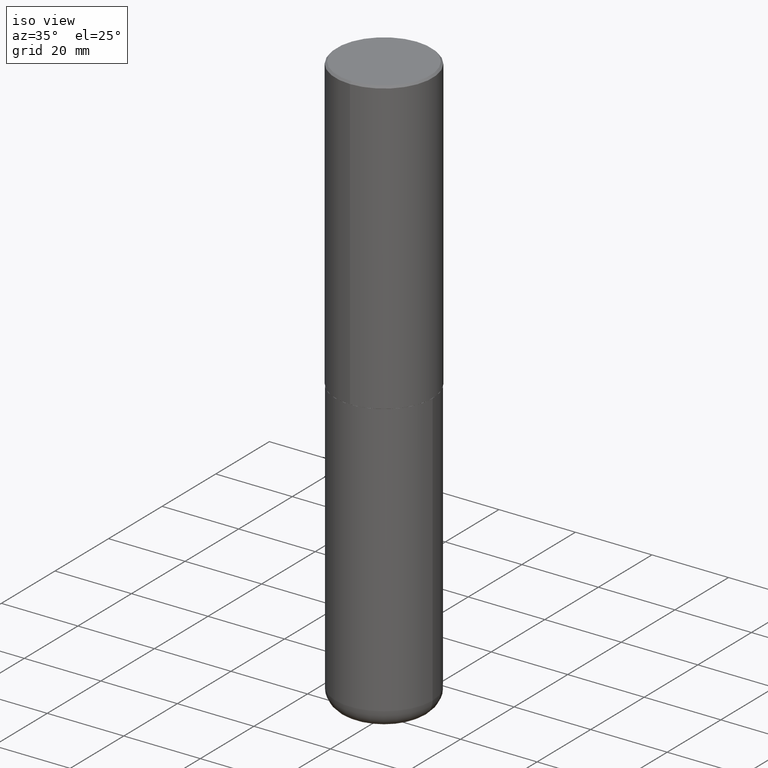
[diagram: clean part render]
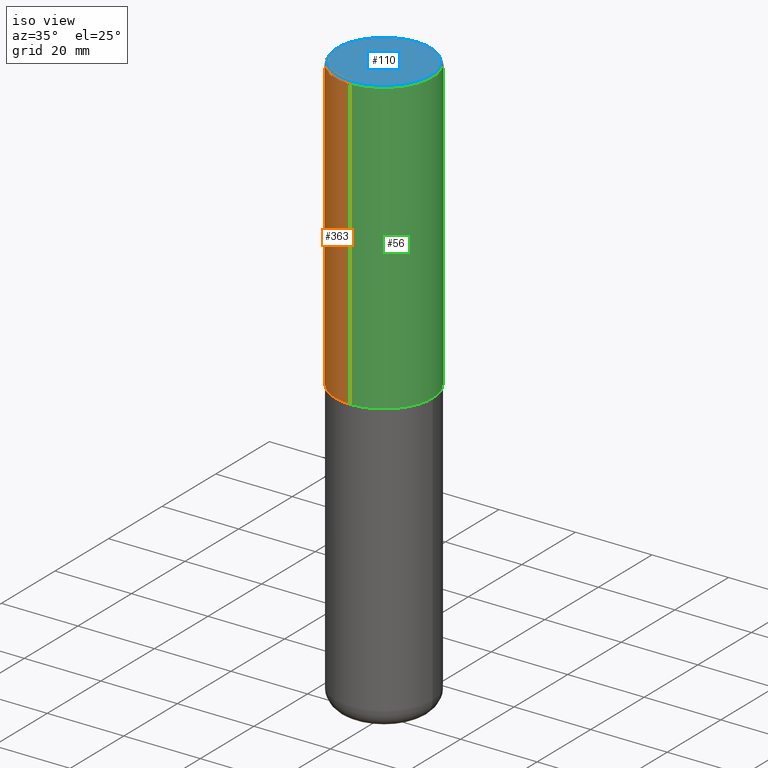
[diagram: same view with three faces highlighted in distinct colors, each labeled with its STEP entity id]
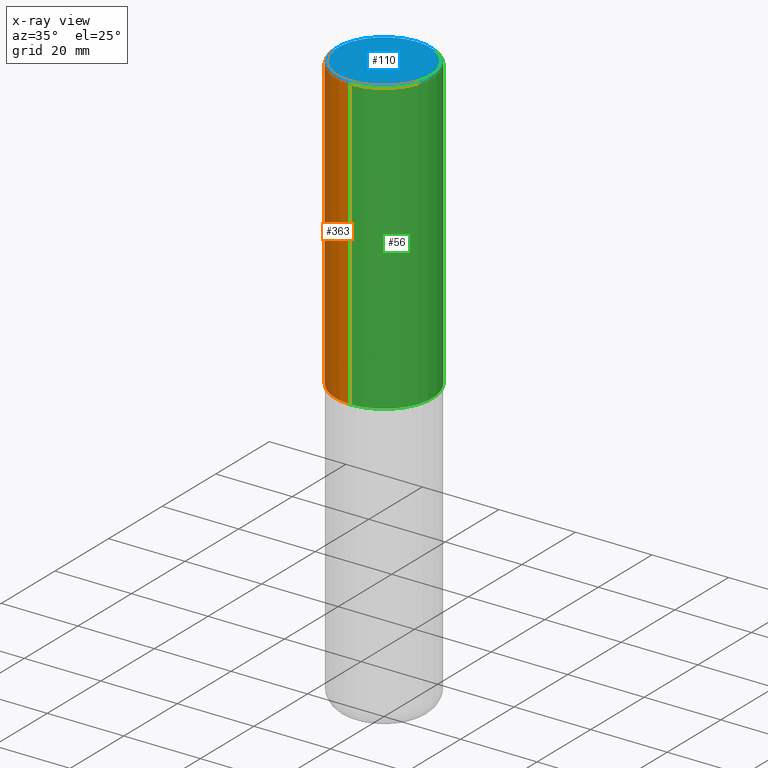
[diagram: x-ray of the same camera — body ghosted, the three highlighted faces saturated]
A machine part, iso view with three faces highlighted in distinct colors.
The next image is the same camera in x-ray (body ghosted, the three faces saturated) — at least one of them is partly hidden behind the body in this view.
Their STEP definitions:

[orange] entity #363 — the highlighted cylindrical surface (partial cylindrical patch) has radius 12.7 mm, axis along (-0, 0, 1).
#4 = CARTESIAN_POINT ( 'NONE',  ( 3.491481338843133355E-15, 0.4999999999999999445, -0.02000000000000185310 ) ) ;
#14 = AXIS2_PLACEMENT_3D ( 'NONE', #88, #143, #381 ) ;
#19 = VERTEX_POINT ( 'NONE', #4 ) ;
#59 = CARTESIAN_POINT ( 'NONE',  ( -3.491481338843133750E-15, -0.5000000000000001110, 1.746149358764313390E-15 ) ) ;
#62 = ORIENTED_EDGE ( 'NONE', *, *, #132, .T. ) ;
#65 = CARTESIAN_POINT ( 'NONE',  ( -3.430248998885764992E-15, -0.5000000000000001110, -0.01999999999999835937 ) ) ;
#66 = CARTESIAN_POINT ( 'NONE',  ( 4.889796067399450837E-31, -6.984597435057287381E-17, -0.02000000000000010797 ) ) ;
#69 = CIRCLE ( 'NONE', #266, 0.5000000000000000000 ) ;
#79 = EDGE_LOOP ( 'NONE', ( #281, #267, #62, #284 ) ) ;
#88 = CARTESIAN_POINT ( 'NONE',  ( 7.332249203065438921E-29, -1.047340385386834930E-14, -2.999000000000000554 ) ) ;
#109 = VERTEX_POINT ( 'NONE', #325 ) ;
#132 = EDGE_CURVE ( 'NONE', #197, #222, #321, .T. ) ;
#143 = DIRECTION ( 'NONE',  ( -2.444898033699712212E-29, 3.492298717528625990E-15, 1.000000000000000000 ) ) ;
#152 = CARTESIAN_POINT ( 'NONE',  ( 3.552713678800501718E-15, 0.5000000000000001110, -1.746149358764313390E-15 ) ) ;
#153 = CARTESIAN_POINT ( 'NONE',  ( -3.491481338843061569E-15, -0.5000000000000107692, -2.998999999999998778 ) ) ;
#171 = CARTESIAN_POINT ( 'NONE',  ( 0.000000000000000000, 0.000000000000000000, 0.000000000000000000 ) ) ;
#181 = DIRECTION ( 'NONE',  ( -6.982962677686265922E-15, -1.000000000000000000, 3.491643216902136408E-15 ) ) ;
#184 = VECTOR ( 'NONE', #383, 39.37007874015748143 ) ;
#197 = VERTEX_POINT ( 'NONE', #153 ) ;
#204 = VECTOR ( 'NONE', #248, 39.37007874015748143 ) ;
#205 = LINE ( 'NONE', #152, #184 ) ;
#206 = AXIS2_PLACEMENT_3D ( 'NONE', #171, #240, #341 ) ;
#222 = VERTEX_POINT ( 'NONE', #65 ) ;
#238 = FACE_OUTER_BOUND ( 'NONE', #79, .T. ) ;
#240 = DIRECTION ( 'NONE',  ( -2.444898033699712212E-29, 3.492298717528625990E-15, 1.000000000000000000 ) ) ;
#248 = DIRECTION ( 'NONE',  ( -2.444898033699711931E-29, 3.492298717528626385E-15, 1.000000000000000000 ) ) ;
#266 = AXIS2_PLACEMENT_3D ( 'NONE', #66, #359, #181 ) ;
#267 = ORIENTED_EDGE ( 'NONE', *, *, #298, .T. ) ;
#281 = ORIENTED_EDGE ( 'NONE', *, *, #371, .F. ) ;
#284 = ORIENTED_EDGE ( 'NONE', *, *, #293, .F. ) ;
#293 = EDGE_CURVE ( 'NONE', #19, #222, #69, .T. ) ;
#298 = EDGE_CURVE ( 'NONE', #109, #197, #366, .T. ) ;
#321 = LINE ( 'NONE', #59, #204 ) ;
#325 = CARTESIAN_POINT ( 'NONE',  ( 3.552713678800539584E-15, 0.4999999999999898970, -2.999000000000001886 ) ) ;
#341 = DIRECTION ( 'NONE',  ( -6.982962677686265922E-15, -1.000000000000000000, 3.492298717528625990E-15 ) ) ;
#359 = DIRECTION ( 'NONE',  ( -2.444898033699712212E-29, 3.492298717528625990E-15, 1.000000000000000000 ) ) ;
#363 = ADVANCED_FACE ( 'NONE', ( #238 ), #411, .T. ) ;
#366 = CIRCLE ( 'NONE', #14, 0.5000000000000002220 ) ;
#371 = EDGE_CURVE ( 'NONE', #109, #19, #205, .T. ) ;
#381 = DIRECTION ( 'NONE',  ( -6.982962677686266711E-15, -1.000000000000000000, 3.278217592397114284E-15 ) ) ;
#383 = DIRECTION ( 'NONE',  ( -2.444898033699711931E-29, 3.492298717528626385E-15, 1.000000000000000000 ) ) ;
#411 = CYLINDRICAL_SURFACE ( 'NONE', #206, 0.5000000000000001110 ) ;

[blue] entity #110 — the highlighted planar face has unit normal (0, -0, -1).
#1 = ORIENTED_EDGE ( 'NONE', *, *, #166, .T. ) ;
#30 = VERTEX_POINT ( 'NONE', #280 ) ;
#39 = ORIENTED_EDGE ( 'NONE', *, *, #103, .T. ) ;
#45 = DIRECTION ( 'NONE',  ( -2.444898033699712212E-29, 3.492298717528625990E-15, 1.000000000000000000 ) ) ;
#61 = CARTESIAN_POINT ( 'NONE',  ( -3.361644018908049661E-15, -0.4799999999999999267, 1.779140025945180744E-15 ) ) ;
#92 = AXIS2_PLACEMENT_3D ( 'NONE', #114, #410, #376 ) ;
#103 = EDGE_CURVE ( 'NONE', #320, #30, #183, .T. ) ;
#110 = ADVANCED_FACE ( 'NONE', ( #365 ), #407, .F. ) ;
#114 = CARTESIAN_POINT ( 'NONE',  ( 3.351822085289407153E-15, 0.4799999999999999267, -1.624885063648019971E-15 ) ) ;
#166 = EDGE_CURVE ( 'NONE', #30, #320, #339, .T. ) ;
#177 = CARTESIAN_POINT ( 'NONE',  ( -2.514251026725007597E-45, 3.591362713352002573E-31, 1.028366415314403880E-16 ) ) ;
#183 = CIRCLE ( 'NONE', #301, 0.4799999999999999267 ) ;
#188 = EDGE_LOOP ( 'NONE', ( #1, #39 ) ) ;
#214 = AXIS2_PLACEMENT_3D ( 'NONE', #177, #393, #251 ) ;
#230 = CARTESIAN_POINT ( 'NONE',  ( -2.514251026725007597E-45, 3.591362713352002573E-31, 1.028366415314403880E-16 ) ) ;
#231 = DIRECTION ( 'NONE',  ( -6.982962677686265922E-15, -1.000000000000000000, 3.492298717528625990E-15 ) ) ;
#251 = DIRECTION ( 'NONE',  ( -6.982962677686265922E-15, -1.000000000000000000, 3.492298717528625990E-15 ) ) ;
#280 = CARTESIAN_POINT ( 'NONE',  ( 3.421651712066270057E-15, 0.4799999999999999267, -1.573466742882299844E-15 ) ) ;
#301 = AXIS2_PLACEMENT_3D ( 'NONE', #230, #45, #231 ) ;
#320 = VERTEX_POINT ( 'NONE', #61 ) ;
#339 = CIRCLE ( 'NONE', #214, 0.4799999999999999267 ) ;
#365 = FACE_OUTER_BOUND ( 'NONE', #188, .T. ) ;
#376 = DIRECTION ( 'NONE',  ( 6.982962677686265922E-15, 1.000000000000000000, -3.492298717528626385E-15 ) ) ;
#393 = DIRECTION ( 'NONE',  ( -2.444898033699712212E-29, 3.492298717528625990E-15, 1.000000000000000000 ) ) ;
#407 = PLANE ( 'NONE',  #92 ) ;
#410 = DIRECTION ( 'NONE',  ( 2.444898033699711371E-29, -3.492298717528626385E-15, -1.000000000000000000 ) ) ;

[green] entity #56 — the highlighted cylindrical surface (partial cylindrical patch) has radius 12.7 mm, axis along (-0, 0, 1).
#4 = CARTESIAN_POINT ( 'NONE',  ( 3.491481338843133355E-15, 0.4999999999999999445, -0.02000000000000185310 ) ) ;
#5 = DIRECTION ( 'NONE',  ( -2.444898033699712212E-29, 3.492298717528625990E-15, 1.000000000000000000 ) ) ;
#18 = CIRCLE ( 'NONE', #140, 0.5000000000000000000 ) ;
#19 = VERTEX_POINT ( 'NONE', #4 ) ;
#48 = CARTESIAN_POINT ( 'NONE',  ( 0.000000000000000000, 0.000000000000000000, 0.000000000000000000 ) ) ;
#50 = AXIS2_PLACEMENT_3D ( 'NONE', #312, #58, #379 ) ;
#56 = ADVANCED_FACE ( 'NONE', ( #147 ), #191, .T. ) ;
#58 = DIRECTION ( 'NONE',  ( -2.444898033699712212E-29, 3.492298717528625990E-15, 1.000000000000000000 ) ) ;
#59 = CARTESIAN_POINT ( 'NONE',  ( -3.491481338843133750E-15, -0.5000000000000001110, 1.746149358764313390E-15 ) ) ;
#65 = CARTESIAN_POINT ( 'NONE',  ( -3.430248998885764992E-15, -0.5000000000000001110, -0.01999999999999835937 ) ) ;
#109 = VERTEX_POINT ( 'NONE', #325 ) ;
#130 = CIRCLE ( 'NONE', #50, 0.5000000000000002220 ) ;
#132 = EDGE_CURVE ( 'NONE', #197, #222, #321, .T. ) ;
#140 = AXIS2_PLACEMENT_3D ( 'NONE', #243, #215, #292 ) ;
#147 = FACE_OUTER_BOUND ( 'NONE', #331, .T. ) ;
#152 = CARTESIAN_POINT ( 'NONE',  ( 3.552713678800501718E-15, 0.5000000000000001110, -1.746149358764313390E-15 ) ) ;
#153 = CARTESIAN_POINT ( 'NONE',  ( -3.491481338843061569E-15, -0.5000000000000107692, -2.998999999999998778 ) ) ;
#155 = EDGE_CURVE ( 'NONE', #222, #19, #18, .T. ) ;
#184 = VECTOR ( 'NONE', #383, 39.37007874015748143 ) ;
#191 = CYLINDRICAL_SURFACE ( 'NONE', #286, 0.5000000000000001110 ) ;
#197 = VERTEX_POINT ( 'NONE', #153 ) ;
#202 = ORIENTED_EDGE ( 'NONE', *, *, #371, .T. ) ;
#204 = VECTOR ( 'NONE', #248, 39.37007874015748143 ) ;
#205 = LINE ( 'NONE', #152, #184 ) ;
#215 = DIRECTION ( 'NONE',  ( -2.444898033699712212E-29, 3.492298717528625990E-15, 1.000000000000000000 ) ) ;
#222 = VERTEX_POINT ( 'NONE', #65 ) ;
#227 = ORIENTED_EDGE ( 'NONE', *, *, #155, .F. ) ;
#243 = CARTESIAN_POINT ( 'NONE',  ( 4.889796067399450837E-31, -6.984597435057287381E-17, -0.02000000000000010797 ) ) ;
#248 = DIRECTION ( 'NONE',  ( -2.444898033699711931E-29, 3.492298717528626385E-15, 1.000000000000000000 ) ) ;
#255 = ORIENTED_EDGE ( 'NONE', *, *, #132, .F. ) ;
#286 = AXIS2_PLACEMENT_3D ( 'NONE', #48, #5, #324 ) ;
#292 = DIRECTION ( 'NONE',  ( -6.982962677686265922E-15, -1.000000000000000000, 3.491643216902136408E-15 ) ) ;
#312 = CARTESIAN_POINT ( 'NONE',  ( 7.332249203065438921E-29, -1.047340385386834930E-14, -2.999000000000000554 ) ) ;
#321 = LINE ( 'NONE', #59, #204 ) ;
#324 = DIRECTION ( 'NONE',  ( -6.982962677686265922E-15, -1.000000000000000000, 3.492298717528625990E-15 ) ) ;
#325 = CARTESIAN_POINT ( 'NONE',  ( 3.552713678800539584E-15, 0.4999999999999898970, -2.999000000000001886 ) ) ;
#331 = EDGE_LOOP ( 'NONE', ( #388, #202, #227, #255 ) ) ;
#371 = EDGE_CURVE ( 'NONE', #109, #19, #205, .T. ) ;
#372 = EDGE_CURVE ( 'NONE', #197, #109, #130, .T. ) ;
#379 = DIRECTION ( 'NONE',  ( -6.982962677686266711E-15, -1.000000000000000000, 3.278217592397114284E-15 ) ) ;
#383 = DIRECTION ( 'NONE',  ( -2.444898033699711931E-29, 3.492298717528626385E-15, 1.000000000000000000 ) ) ;
#388 = ORIENTED_EDGE ( 'NONE', *, *, #372, .T. ) ;